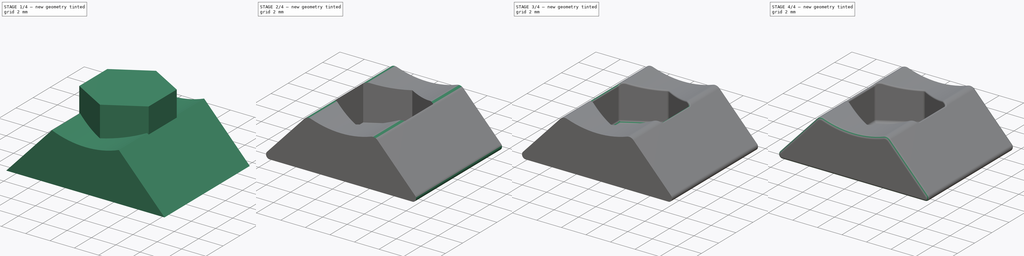
[diagram: build sequence overview — one tinted view per stage of 4, left to right]
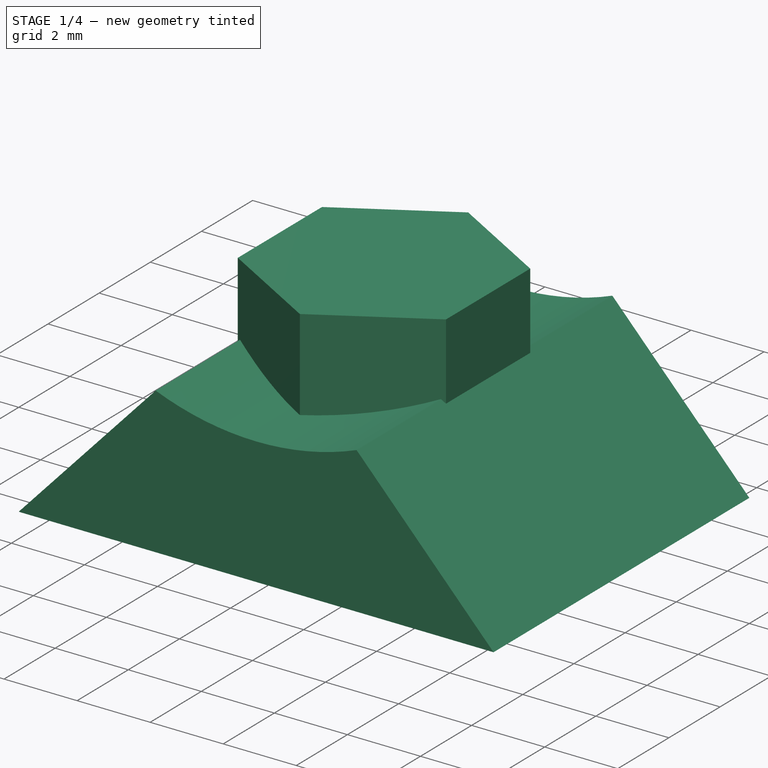
[diagram: stage 1 of 4 — iso view after this stage's code; geometry added in this stage tinted green]
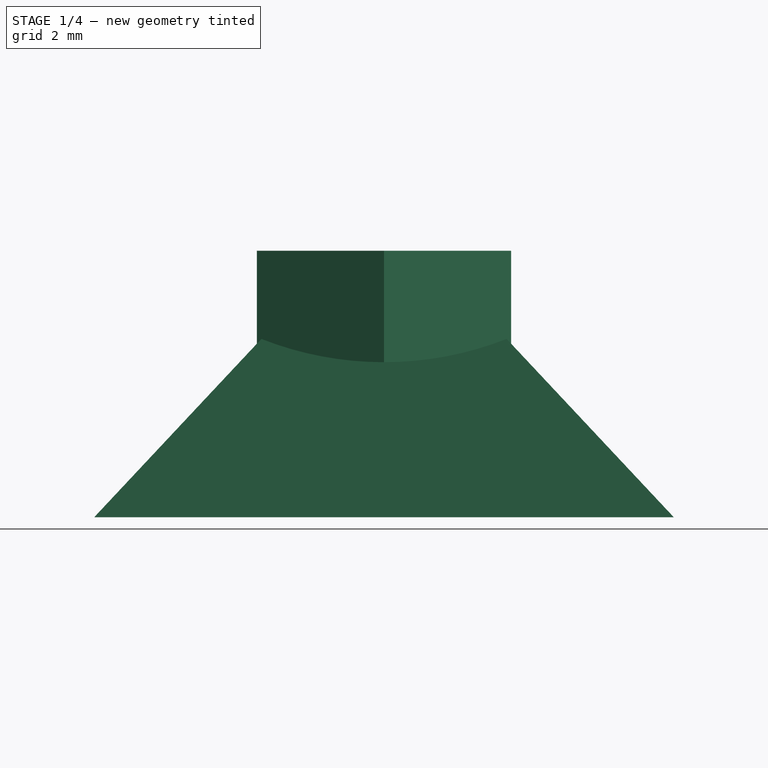
[diagram: stage 1 of 4 — front view after this stage's code; geometry added in this stage tinted green]
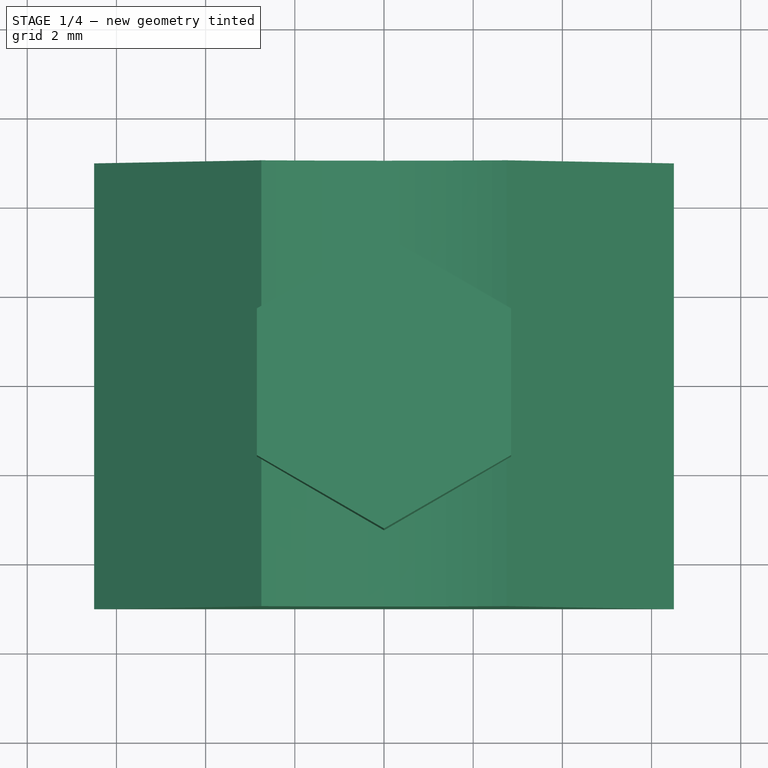
[diagram: stage 1 of 4 — top view after this stage's code; geometry added in this stage tinted green]
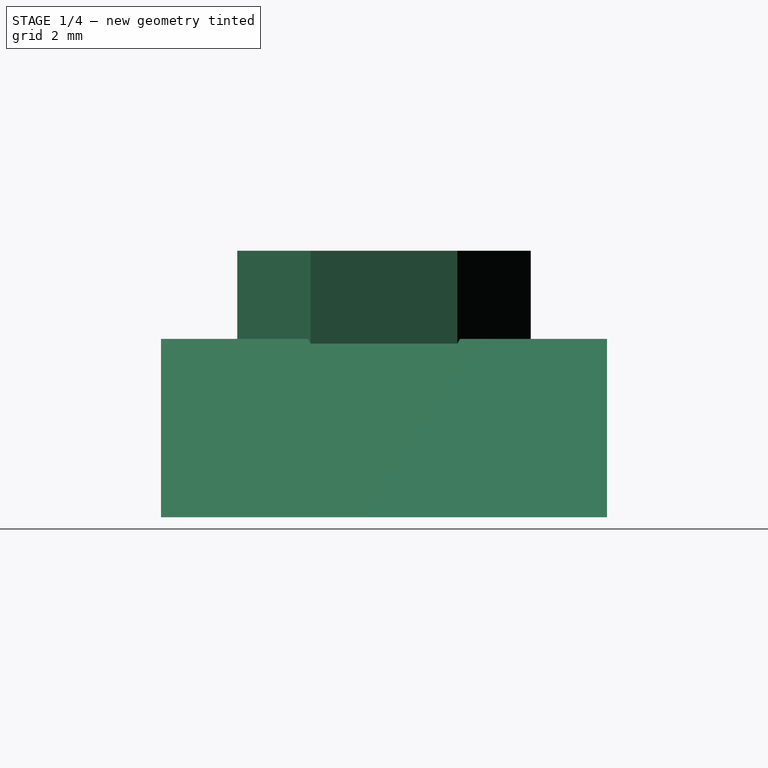
[diagram: stage 1 of 4 — right view after this stage's code; geometry added in this stage tinted green]
FCSTD DOCUMENT  (FreeCAD 0.15R4671 (Git))
Label: M3_TSlot20_Nut
License: All rights reserved
LicenseURL: http://en.wikipedia.org/wiki/All_rights_reserved
objects: PartDesign::Fillet×6, Sketcher::SketchObject×3, PartDesign::Pad×2, Part::Cut×1, PartDesign::Pocket×1
note: 16 computed .brp shape members not serialized (recipe doc carries the construction recipe); baked Part::Feature solids carry a one-line shape summary decoded from their .brp

FEATURE [Sketcher::SketchObject] Sketch
  Placement = pos=(0,0,0) rot=(-1,0,0;4.71239rad)
  sketch-geometry (4):
    g0: LineSegment StartX=-6.5 StartY=-3.47764 StartZ=0 EndX=6.5 EndY=-3.47764 EndZ=0
    g1: LineSegment StartX=6.5 StartY=-3.47764 StartZ=0 EndX=2.75 EndY=0.522357 EndZ=0
    g2: LineSegment StartX=-2.75 StartY=0.522357 StartZ=0 EndX=-6.5 EndY=-3.47764 EndZ=0
    g3: ArcOfCircle CenterX=0 CenterY=7.5 CenterZ=0 NormalX=0 NormalY=0 NormalZ=1 Radius=7.5 StartAngle=4.33697 EndAngle=5.08781
  constraints (12):
    c: Coincident(g0,g1)
    c: Coincident(g2,g0)
    c: Symmetric(g0,g0,g-2)
    c: Symmetric(g2,g1,g-2)
    c: DistanceX(g0) = 13
    c: DistanceY(g0,g2) = 4
    c: PointOnObject(g3,g-2)
    c: Coincident(g3,g1)
    c: Coincident(g3,g2)
    c: DistanceX(g2,g1) = 5.5
    c: Radius(g3) = 7.5
    c: Tangent(g-1,g3)
FEATURE [PartDesign::Pad] Pad
  Length = 10
  Length2 = 100
  Midplane = true
  Placement = pos=(0,0,0) rot=(-1,0,0;4.71239rad)
  Sketch = -> Sketch
  Type = 0
FEATURE [Sketcher::SketchObject] Sketch001
  sketch-geometry (8):
    g0: LineSegment StartX=2.85 StartY=-1.64545 StartZ=0 EndX=2.85 EndY=1.64545 EndZ=0
    g1: LineSegment StartX=2.85 StartY=1.64545 StartZ=0 EndX=0 EndY=3.2909 EndZ=0
    g2: LineSegment StartX=0 StartY=3.2909 StartZ=0 EndX=-2.85 EndY=1.64545 EndZ=0
    g3: LineSegment StartX=-2.85 StartY=1.64545 StartZ=0 EndX=-2.85 EndY=-1.64545 EndZ=0
    g4: LineSegment StartX=-2.85 StartY=-1.64545 StartZ=0 EndX=0 EndY=-3.2909 EndZ=0
    g5: LineSegment StartX=0 StartY=-3.2909 StartZ=0 EndX=2.85 EndY=-1.64545 EndZ=0
    g6: Circle [constr] CenterX=0 CenterY=0 CenterZ=0 NormalX=0 NormalY=0 NormalZ=1 Radius=3.2909
    g7: LineSegment [constr] StartX=2.85 StartY=1.64545 StartZ=0 EndX=-2.85 EndY=1.64545 EndZ=0
  constraints (19):
    c: Coincident(g0,g1)
    c: Coincident(g1,g2)
    c: Coincident(g2,g3)
    c: Coincident(g3,g4)
    c: Coincident(g4,g5)
    c: Coincident(g5,g0)
    c: Equal(g0, g1-g5) x5
    c: PointOnObject(g0,g6)
    c: PointOnObject(g1,g6)
    c: PointOnObject(g2,g6)
    c: PointOnObject(g3,g6)
    c: PointOnObject(g4,g6)
    c: PointOnObject(g5,g6)
    c: Coincident(g3,g-1)
    c: Coincident(g6,g-1)
    c: Coincident(g7,g0)
    c: Coincident(g7,g2)
    c: Horizontal(g7)
    c: DistanceX(g7) = -5.7
FEATURE [PartDesign::Pad] Pad001
  Length = 5
  Length2 = 100
  Midplane = true
  Sketch = -> Sketch001
  Type = 0
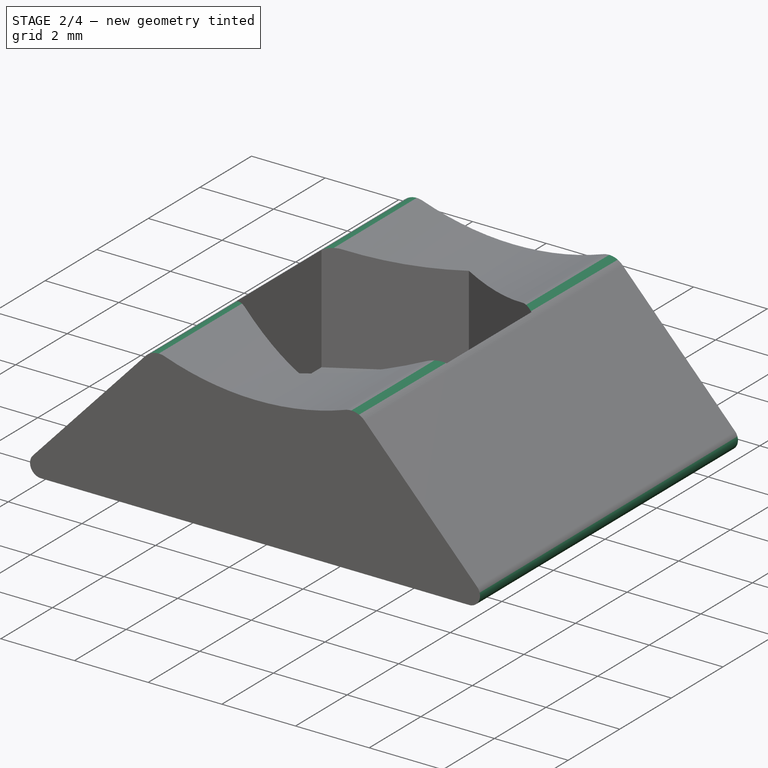
[diagram: stage 2 of 4 — iso view after this stage's code; geometry added in this stage tinted green]
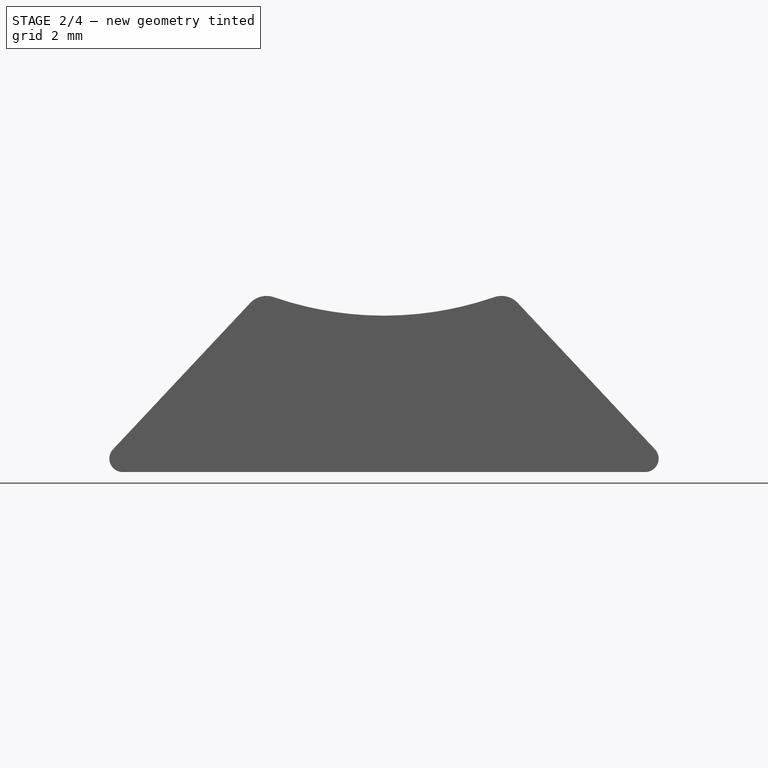
[diagram: stage 2 of 4 — front view after this stage's code; geometry added in this stage tinted green]
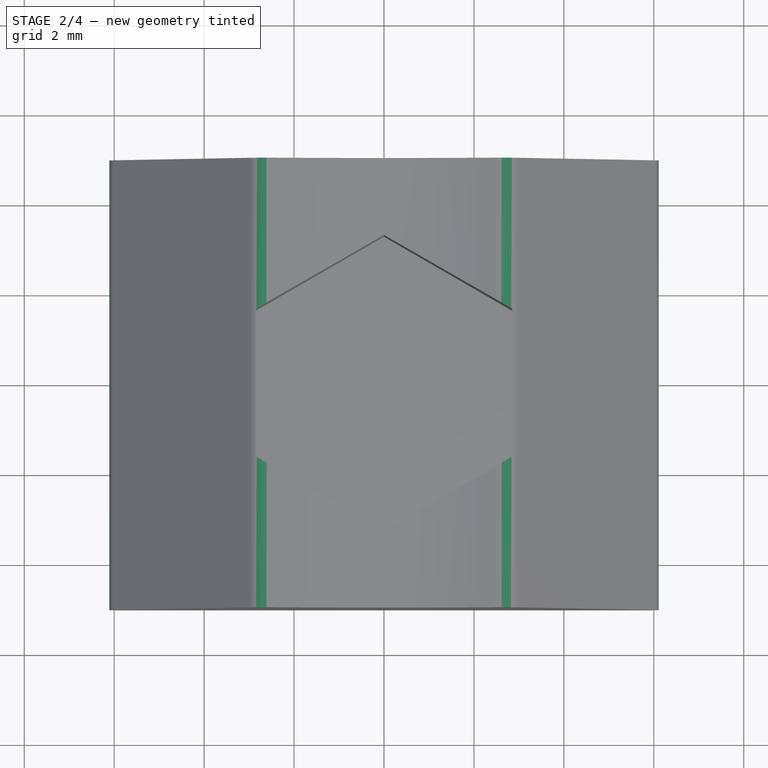
[diagram: stage 2 of 4 — top view after this stage's code; geometry added in this stage tinted green]
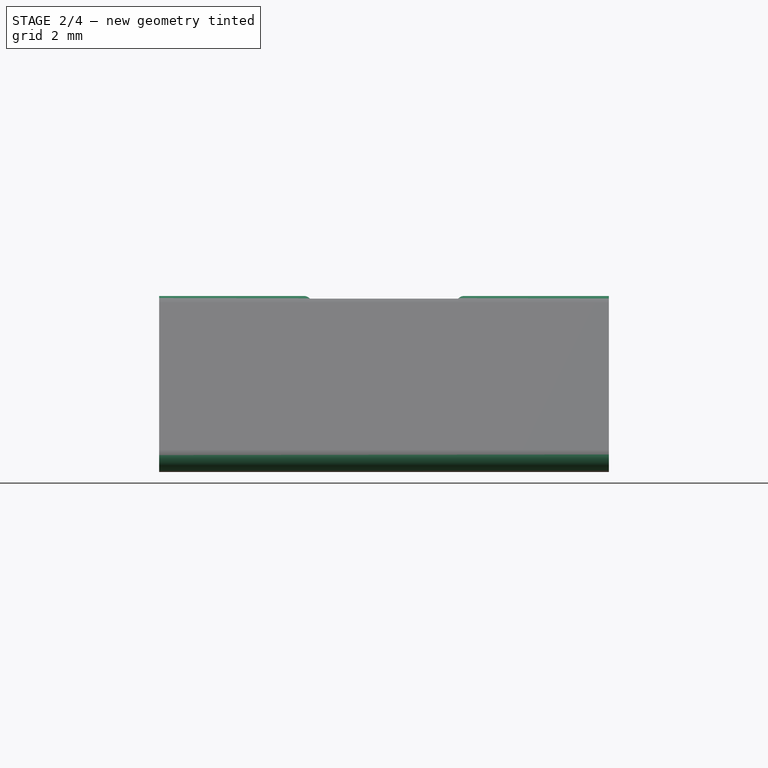
[diagram: stage 2 of 4 — right view after this stage's code; geometry added in this stage tinted green]
FEATURE [PartDesign::Fillet] Fillet
  Base = -> Pad [Edge5,Edge8]
  Placement = pos=(0,0,0) rot=(-1,0,0;4.71239rad)
  Radius = 0.5
FEATURE [PartDesign::Fillet] Fillet001
  Base = -> Fillet [Edge12,Edge3]
  Placement = pos=(0,0,0) rot=(-1,0,0;4.71239rad)
  Radius = 0.3
FEATURE [Part::Cut] Cut
  Base = -> Fillet001
  Tool = -> Pad001
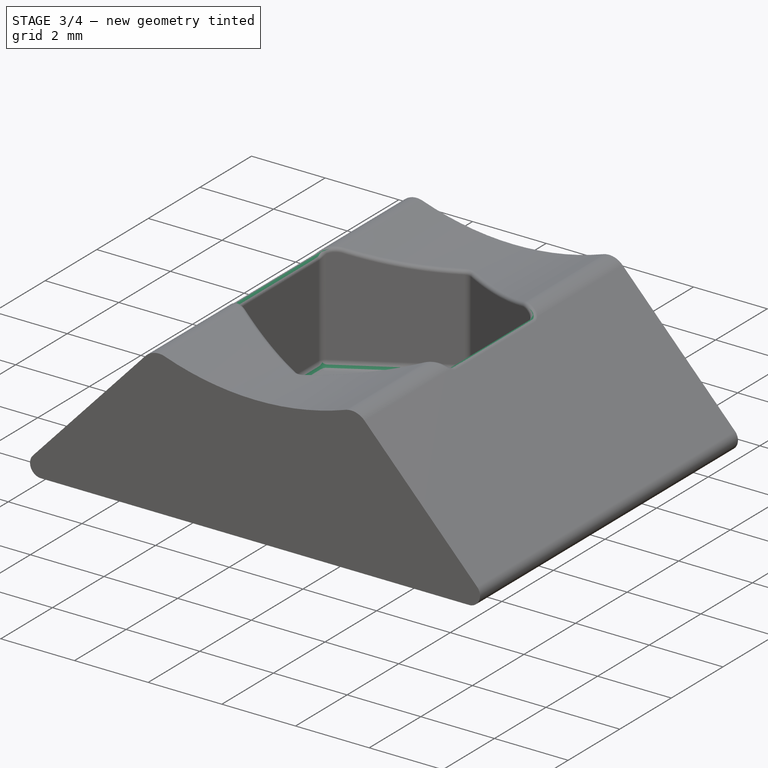
[diagram: stage 3 of 4 — iso view after this stage's code; geometry added in this stage tinted green]
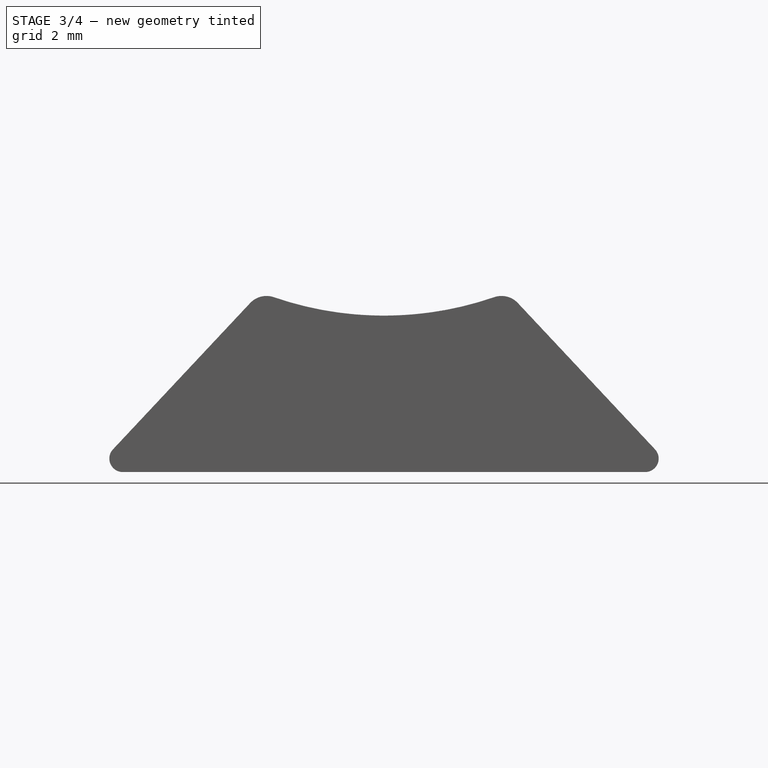
[diagram: stage 3 of 4 — front view after this stage's code; geometry added in this stage tinted green]
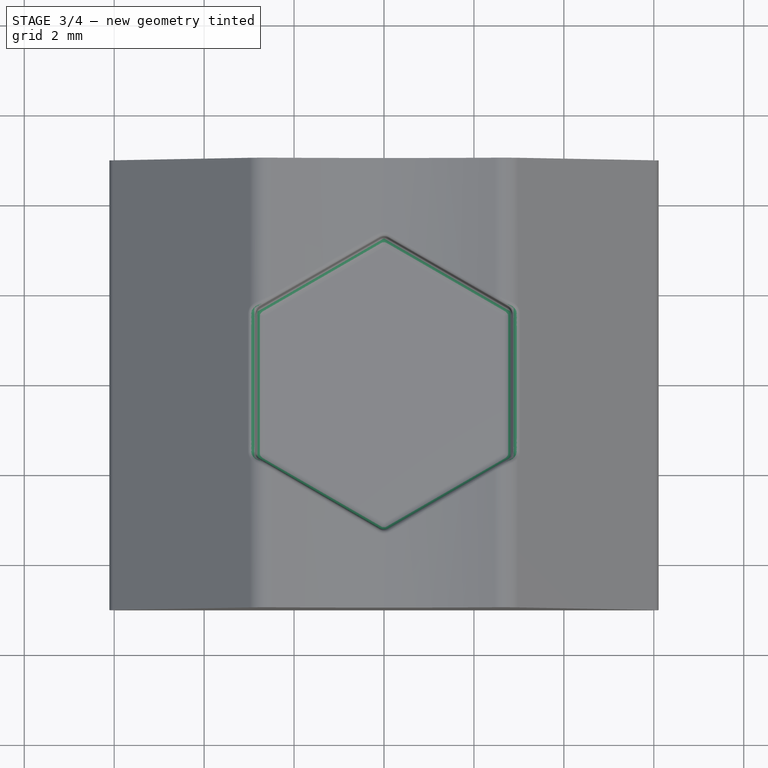
[diagram: stage 3 of 4 — top view after this stage's code; geometry added in this stage tinted green]
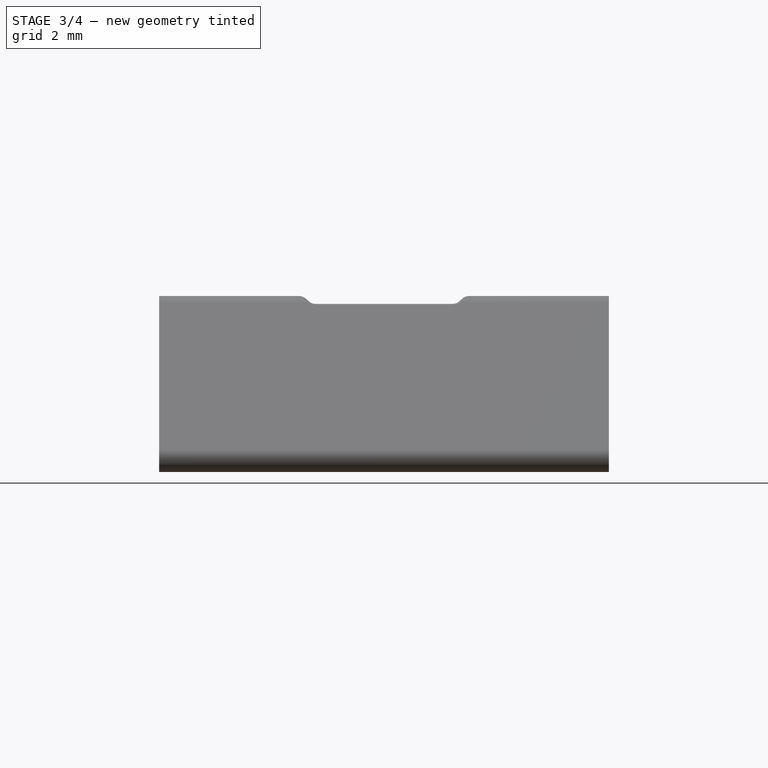
[diagram: stage 3 of 4 — right view after this stage's code; geometry added in this stage tinted green]
FEATURE [PartDesign::Fillet] Fillet002
  Base = -> Cut [Edge45,Edge43,Edge47,Edge39,Edge38,Edge41]
  Radius = 0.2
FEATURE [PartDesign::Fillet] Fillet003
  Base = -> Fillet002 [Edge54]
  Radius = 0.1
FEATURE [PartDesign::Fillet] Fillet004
  Base = -> Fillet003 [Edge80]
  Radius = 0.2
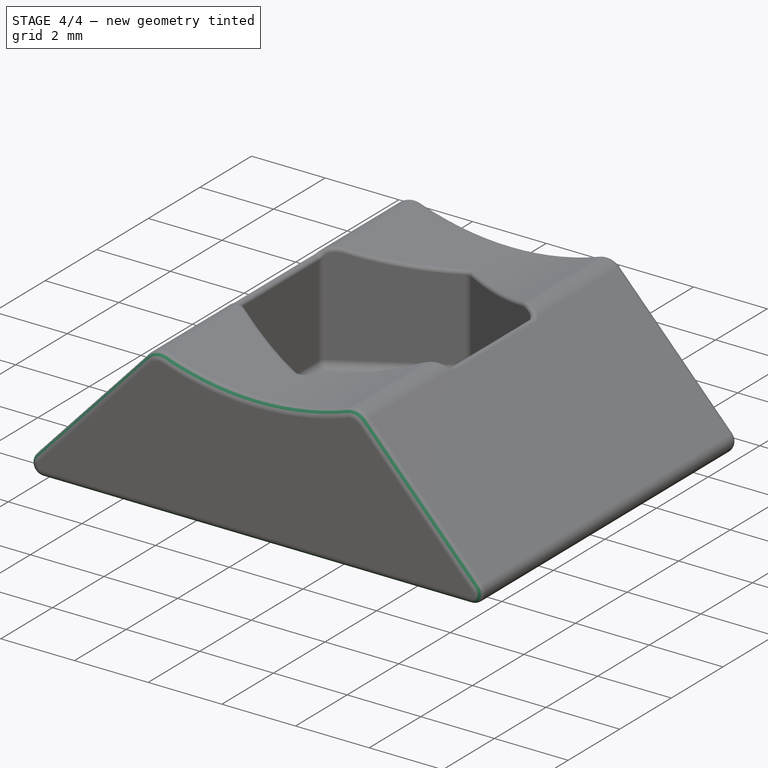
[diagram: stage 4 of 4 — iso view after this stage's code; geometry added in this stage tinted green]
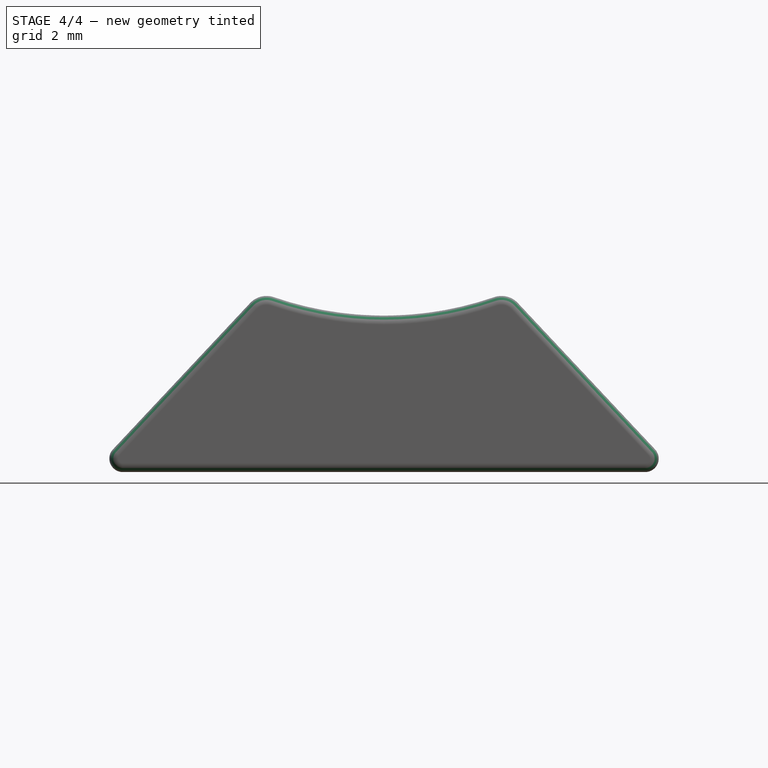
[diagram: stage 4 of 4 — front view after this stage's code; geometry added in this stage tinted green]
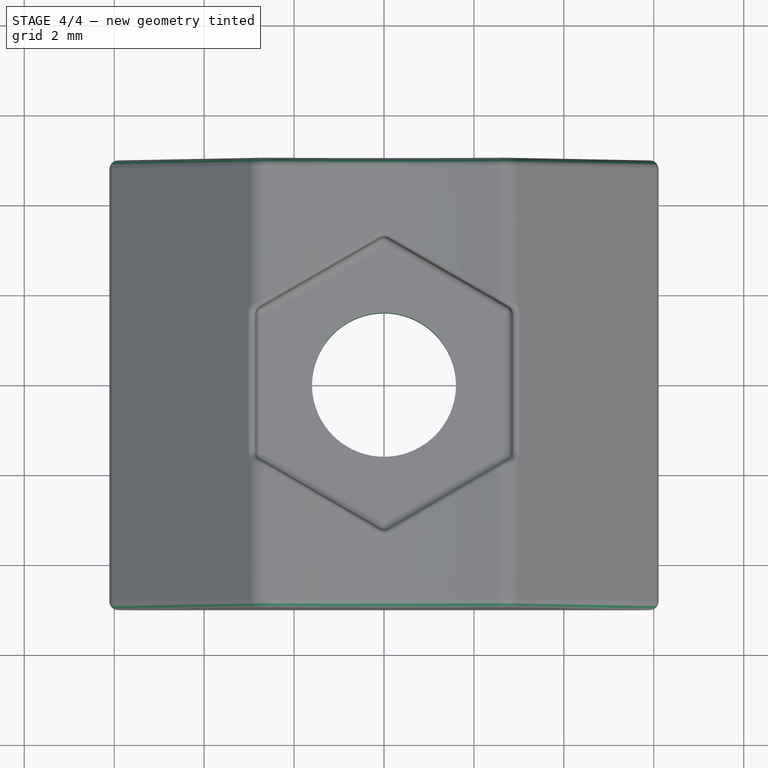
[diagram: stage 4 of 4 — top view after this stage's code; geometry added in this stage tinted green]
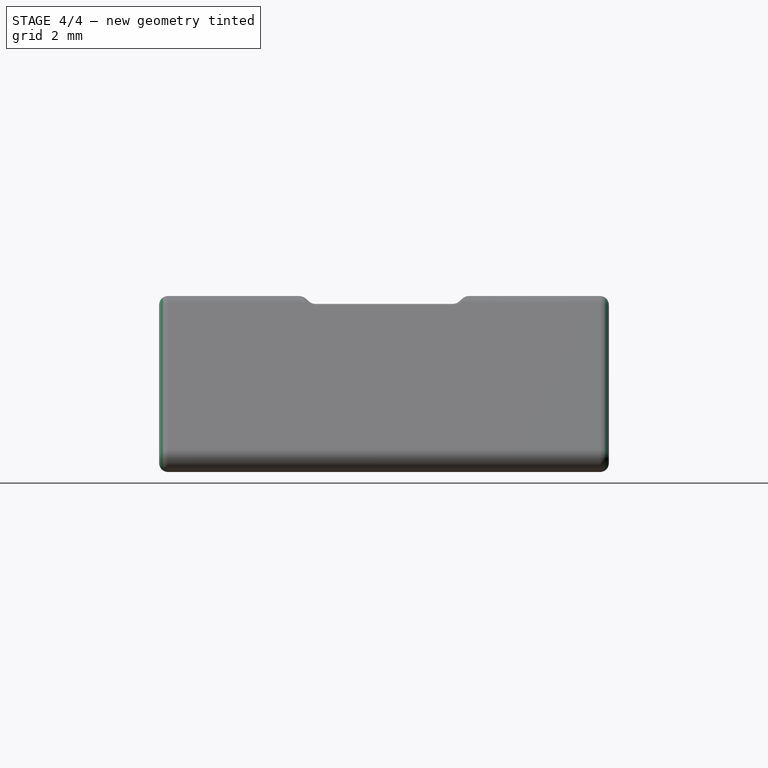
[diagram: stage 4 of 4 — right view after this stage's code; geometry added in this stage tinted green]
FEATURE [Sketcher::SketchObject] Sketch002
  Placement = pos=(0,0,-2.5) rot=(0,0,1;0rad)
  Support = -> Fillet004 [Face10]
  sketch-geometry (1):
    g0: Circle CenterX=0 CenterY=0 CenterZ=0 NormalX=0 NormalY=0 NormalZ=1 Radius=1.6
  constraints (2):
    c: Coincident(g0,g-1)
    c: Radius(g0) = 1.6
FEATURE [PartDesign::Pocket] Pocket
  Length = 5
  Sketch = -> Sketch002
  Type = 2
FEATURE [PartDesign::Fillet] Fillet005
  Base = -> Pocket [Edge77,Edge111]
  Radius = 0.2
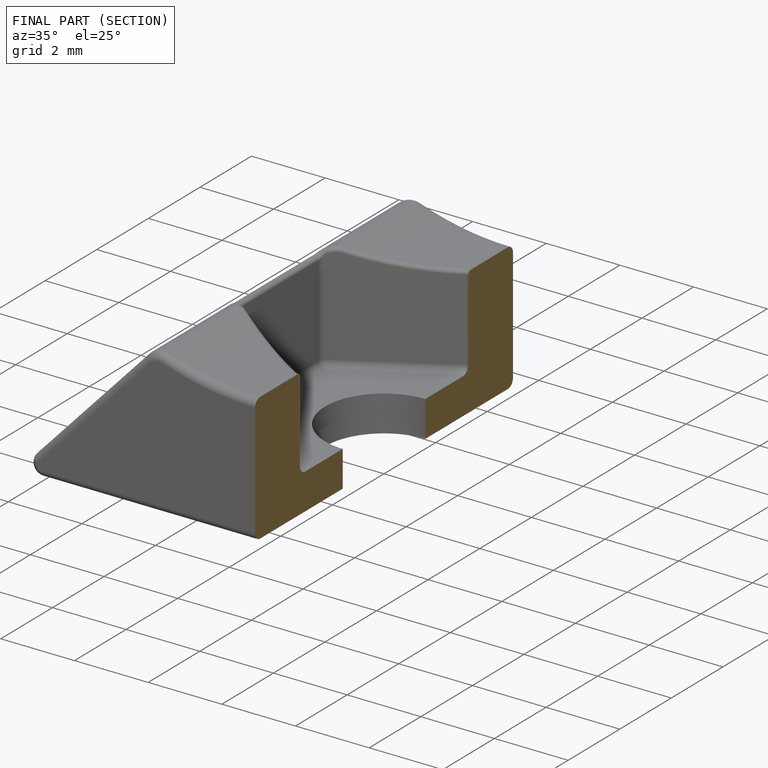
[diagram: finished part — half-section view (interior)]
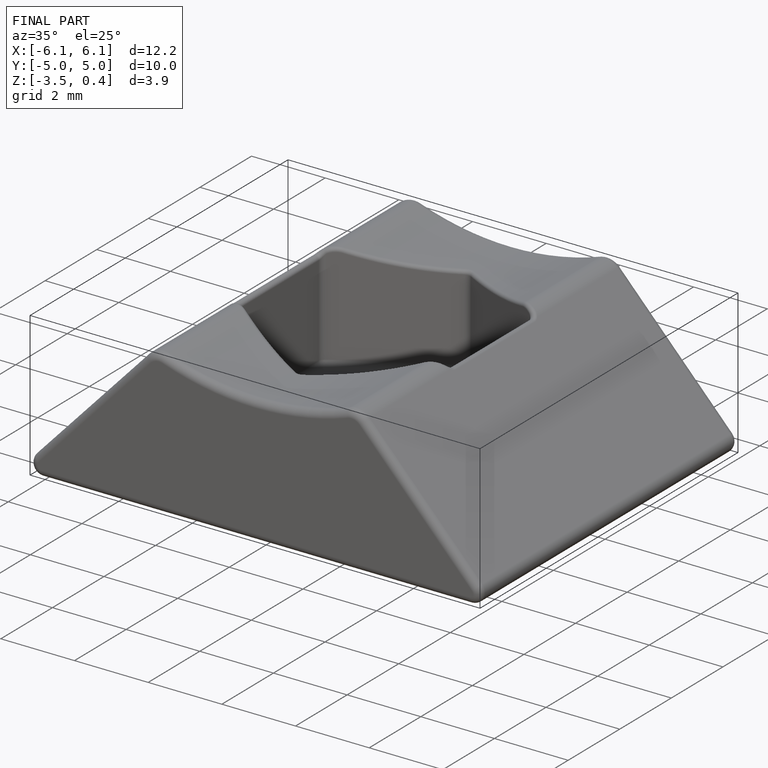
[diagram: finished part — iso view with bounding-box wireframe]
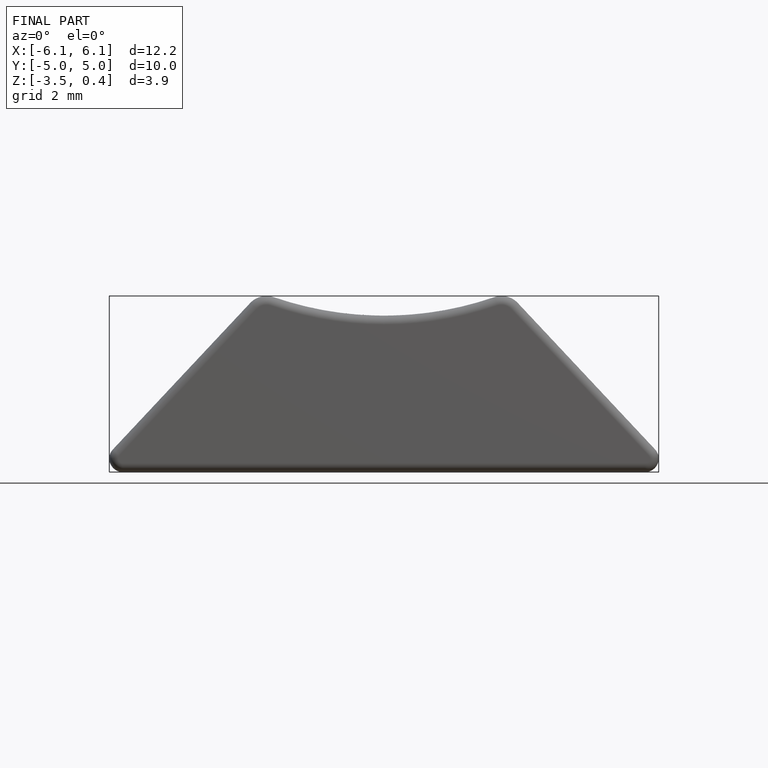
[diagram: finished part — front view with bounding-box wireframe]
